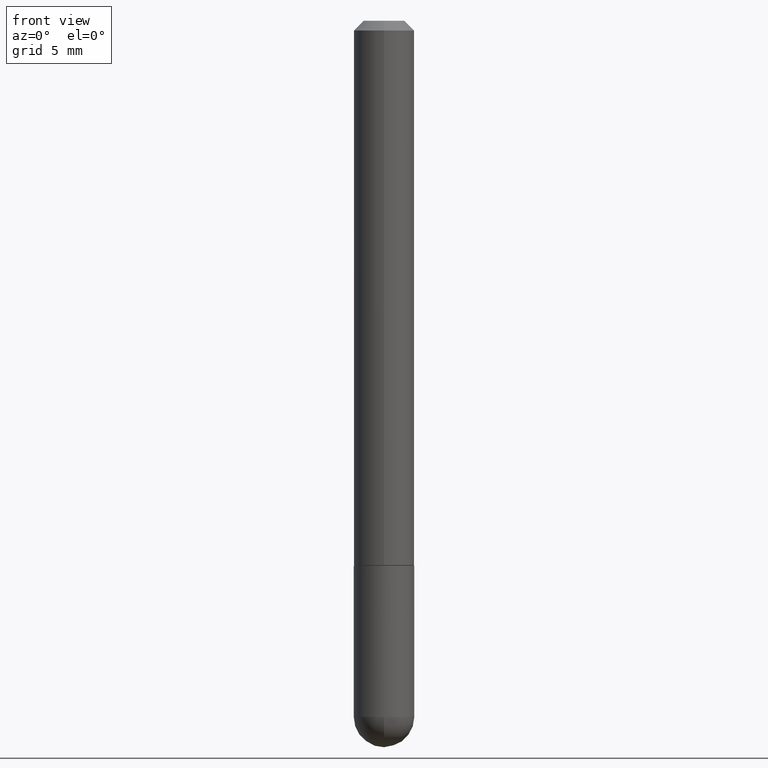
[diagram: clean part render]
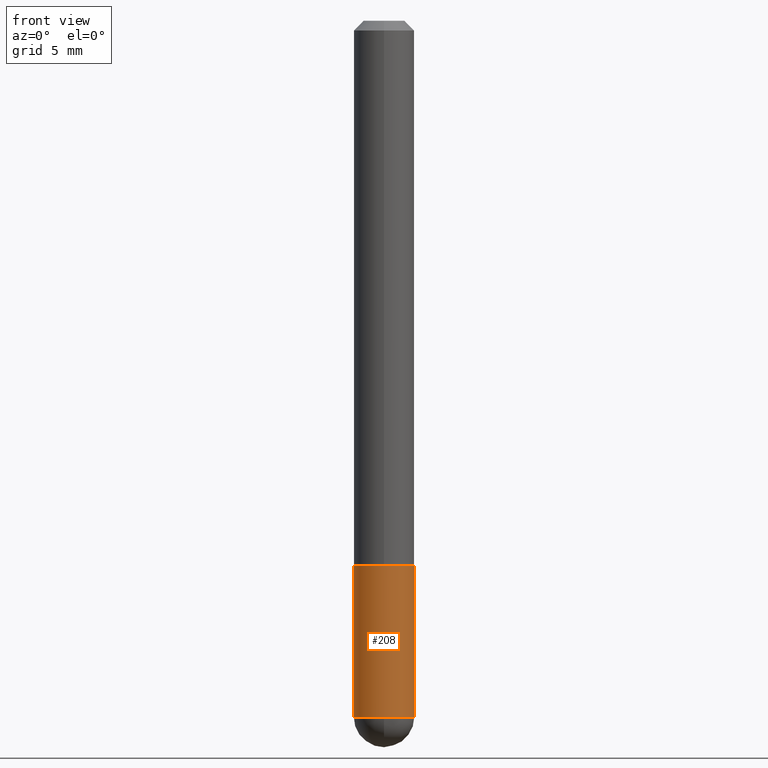
[diagram: same view with one face highlighted and labeled with its STEP entity id]
A machine part, front view. The second image highlights one B-rep face of the part: STEP entity #208.
In plain terms, the highlighted cylindrical surface (edge-blend (fillet) strip) has radius 1.5875 mm, axis along (-0, 0, 1).
Its self-contained STEP definition (entity closure, byte-faithful):
#1 = AXIS2_PLACEMENT_3D ( 'NONE', #296, #231, #124 ) ;
#2 = LINE ( 'NONE', #381, #290 ) ;
#7 = DIRECTION ( 'NONE',  ( -2.445468806185136597E-29, 3.491481338843145583E-15, 1.000000000000000000 ) ) ;
#8 = AXIS2_PLACEMENT_3D ( 'NONE', #166, #7, #332 ) ;
#32 = CYLINDRICAL_SURFACE ( 'NONE', #194, 0.06249999999999997918 ) ;
#37 = CARTESIAN_POINT ( 'NONE',  ( 0.06249999999999995143, -4.909895632748172453E-15, -1.437500000000000222 ) ) ;
#55 = LINE ( 'NONE', #218, #284 ) ;
#63 = DIRECTION ( 'NONE',  ( -2.445468806185136597E-29, 3.491481338843145583E-15, 1.000000000000000000 ) ) ;
#64 = EDGE_CURVE ( 'NONE', #337, #335, #185, .T. ) ;
#81 = EDGE_CURVE ( 'NONE', #364, #337, #55, .T. ) ;
#103 = CARTESIAN_POINT ( 'NONE',  ( -4.440892098500294840E-16, -0.06250000000000532907, -1.437500000000000000 ) ) ;
#106 = EDGE_LOOP ( 'NONE', ( #308, #203, #397, #126, #134 ) ) ;
#124 = DIRECTION ( 'NONE',  ( 1.000000000000000000, -6.982962677686268288E-15, 0.000000000000000000 ) ) ;
#126 = ORIENTED_EDGE ( 'NONE', *, *, #307, .T. ) ;
#132 = CARTESIAN_POINT ( 'NONE',  ( -0.06249999999999995143, -4.029371255542718167E-15, -1.437500000000000222 ) ) ;
#134 = ORIENTED_EDGE ( 'NONE', *, *, #64, .F. ) ;
#163 = FACE_OUTER_BOUND ( 'NONE', #106, .T. ) ;
#166 = CARTESIAN_POINT ( 'NONE',  ( 3.515361408891134418E-29, -5.019004424587023131E-15, -1.437500000000000222 ) ) ;
#185 = CIRCLE ( 'NONE', #222, 0.06250000000000001388 ) ;
#194 = AXIS2_PLACEMENT_3D ( 'NONE', #254, #63, #322 ) ;
#203 = ORIENTED_EDGE ( 'NONE', *, *, #400, .T. ) ;
#208 = ADVANCED_FACE ( 'NONE', ( #163 ), #32, .T. ) ;
#218 = CARTESIAN_POINT ( 'NONE',  ( -0.06249999999999997918, 4.440892098500624683E-16, -3.074334431409315413E-30 ) ) ;
#222 = AXIS2_PLACEMENT_3D ( 'NONE', #252, #287, #292 ) ;
#228 = VERTEX_POINT ( 'NONE', #37 ) ;
#231 = DIRECTION ( 'NONE',  ( -2.445468806185136597E-29, 3.491481338843145583E-15, 1.000000000000000000 ) ) ;
#246 = CIRCLE ( 'NONE', #8, 0.06249999999999995143 ) ;
#252 = CARTESIAN_POINT ( 'NONE',  ( 2.751152406958278111E-29, -3.927916506198538435E-15, -1.124999999999999778 ) ) ;
#254 = CARTESIAN_POINT ( 'NONE',  ( 0.000000000000000000, 0.000000000000000000, 0.000000000000000000 ) ) ;
#259 = DIRECTION ( 'NONE',  ( -2.445468806185136877E-29, 3.491481338843145188E-15, 1.000000000000000000 ) ) ;
#271 = CARTESIAN_POINT ( 'NONE',  ( -0.06250000000000001388, -4.029371255542718167E-15, -1.124999999999999778 ) ) ;
#284 = VECTOR ( 'NONE', #320, 39.37007874015748143 ) ;
#287 = DIRECTION ( 'NONE',  ( -2.445468806185136597E-29, 3.491481338843145583E-15, 1.000000000000000000 ) ) ;
#290 = VECTOR ( 'NONE', #259, 39.37007874015748143 ) ;
#292 = DIRECTION ( 'NONE',  ( 1.000000000000000000, -6.982962677686269077E-15, 0.000000000000000000 ) ) ;
#296 = CARTESIAN_POINT ( 'NONE',  ( 3.515361408891134418E-29, -5.019004424587023131E-15, -1.437500000000000222 ) ) ;
#307 = EDGE_CURVE ( 'NONE', #228, #335, #2, .T. ) ;
#308 = ORIENTED_EDGE ( 'NONE', *, *, #81, .F. ) ;
#320 = DIRECTION ( 'NONE',  ( -2.445468806185136877E-29, 3.491481338843145188E-15, 1.000000000000000000 ) ) ;
#322 = DIRECTION ( 'NONE',  ( 1.000000000000000000, -6.982962677686267499E-15, 4.876176775795936353E-29 ) ) ;
#327 = EDGE_CURVE ( 'NONE', #372, #228, #365, .T. ) ;
#332 = DIRECTION ( 'NONE',  ( 1.000000000000000000, -6.982962677686268288E-15, 0.000000000000000000 ) ) ;
#335 = VERTEX_POINT ( 'NONE', #352 ) ;
#337 = VERTEX_POINT ( 'NONE', #271 ) ;
#352 = CARTESIAN_POINT ( 'NONE',  ( 0.06250000000000001388, -4.364351673553930105E-15, -1.124999999999999778 ) ) ;
#364 = VERTEX_POINT ( 'NONE', #132 ) ;
#365 = CIRCLE ( 'NONE', #1, 0.06249999999999995143 ) ;
#372 = VERTEX_POINT ( 'NONE', #103 ) ;
#381 = CARTESIAN_POINT ( 'NONE',  ( 0.06249999999999997918, -4.364351673553915708E-16, 3.047610484872459170E-30 ) ) ;
#397 = ORIENTED_EDGE ( 'NONE', *, *, #327, .T. ) ;
#400 = EDGE_CURVE ( 'NONE', #364, #372, #246, .T. ) ;